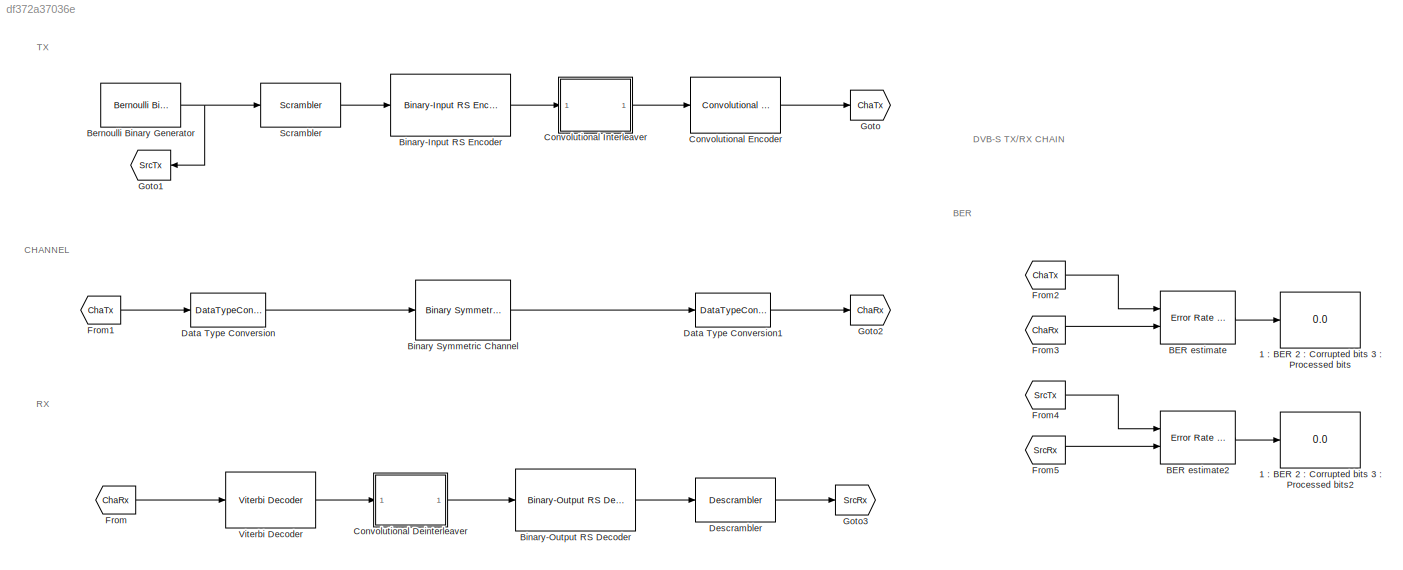
MODEL slx_df372a37036e
KIND model
CONFIG AbsTol = auto
CONFIG EnableMultiTasking = off
CONFIG FixedStep = auto
CONFIG MaxStep = auto
CONFIG MinStep = auto
CONFIG RelTol = 1e-3
CONFIG SampleTimeConstraint = Unconstrained
CONFIG SolverName = FixedStepAuto
CONFIG StartTime = 0
CONFIG StopTime = Tsim
BLOCK [Display] 1 : BER 2 : Corrupted bits 3 : Processed bits
  Decimation = 1
  Ports = [1]
BLOCK [Display] 1 : BER 2 : Corrupted bits 3 : Processed bits2
  Decimation = 1
  Ports = [1]
BLOCK [Reference] BER estimate  REF=commsink2/Error Rate
Calculation
  Ports = [2, 1]
  SourceBlock = commsink2/Error Rate\nCalculation
  SourceProductBaseCode = CM
  SourceType = Error Rate Calculation
BLOCK [Reference] BER estimate2  REF=commsink2/Error Rate
Calculation
  Ports = [2, 1]
  SourceBlock = commsink2/Error Rate\nCalculation
  SourceProductBaseCode = CM
  SourceType = Error Rate Calculation
BLOCK [Reference] Bernoulli Binary Generator  REF=commrandsrc3/Bernoulli Binary
Generator
  Ports = [0, 1]
  SourceBlock = commrandsrc3/Bernoulli Binary\nGenerator
  SourceProductBaseCode = CM
  SourceType = Bernoulli Binary Generator
BLOCK [Reference] Binary Symmetric Channel  REF=commchan3/Binary Symmetric
Channel
  Ports = [1, 1]
  SourceBlock = commchan3/Binary Symmetric\nChannel
  SourceProductBaseCode = CM
  SourceType = Binary Symmetric Channel
BLOCK [Reference] Binary-Input RS Encoder  REF=commblkcod2/Binary-Input
RS Encoder
  Ports = [1, 1]
  SourceBlock = commblkcod2/Binary-Input\nRS Encoder
  SourceProductBaseCode = CM
  SourceType = Binary-Input RS Encoder
BLOCK [Reference] Binary-Output RS Decoder  REF=commblkcod2/Binary-Output
RS Decoder
  Ports = [1, 1]
  SourceBlock = commblkcod2/Binary-Output\nRS Decoder
  SourceProductBaseCode = CM
  SourceType = Binary-Output RS Decoder
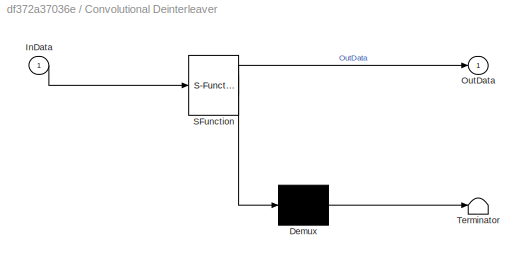
BLOCK [SubSystem] Convolutional Deinterleaver
  ErrorFcn = Stateflow.Translate.translate
  PermitHierarchicalResolution = ExplicitOnly
  Ports = [1, 1]
  RequestExecContextInheritance = off
  SFBlockType = MATLAB Function
  ShowPortLabels = none
  TreatAsAtomicUnit = on
BLOCK [Demux] Convolutional Deinterleaver/ Demux 
  Outputs = 1
  Ports = [1, 1]
BLOCK [S-Function] Convolutional Deinterleaver/ SFunction 
  EnableBusSupport = on
  FunctionName = sf_sfun
  Parameters = I,M
  PortCounts = [1 2]
  Ports = [1, 2]
  SFcnIsStateOwnerBlock = off
  SFunctionDeploymentMode = off
  Tag = Stateflow S-Function 1
BLOCK [Terminator] Convolutional Deinterleaver/ Terminator 
BLOCK [Inport] Convolutional Deinterleaver/InData
BLOCK [Outport] Convolutional Deinterleaver/OutData
BLOCK [Reference] Convolutional Encoder  REF=commcnvcod2/Convolutional
Encoder
  Ports = [1, 1]
  SourceBlock = commcnvcod2/Convolutional\nEncoder
  SourceProductBaseCode = CM
  SourceType = Convolutional Encoder
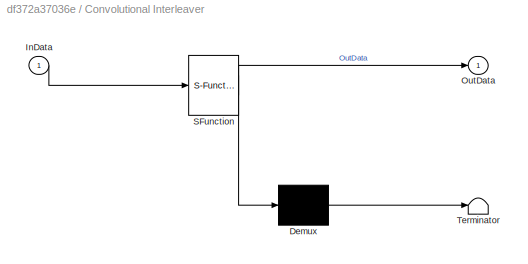
BLOCK [SubSystem] Convolutional Interleaver
  ErrorFcn = Stateflow.Translate.translate
  PermitHierarchicalResolution = ExplicitOnly
  Ports = [1, 1]
  RequestExecContextInheritance = off
  SFBlockType = MATLAB Function
  ShowPortLabels = none
  TreatAsAtomicUnit = on
BLOCK [Demux] Convolutional Interleaver/ Demux 
  Outputs = 1
  Ports = [1, 1]
BLOCK [S-Function] Convolutional Interleaver/ SFunction 
  EnableBusSupport = on
  FunctionName = sf_sfun
  Parameters = I,M
  PortCounts = [1 2]
  Ports = [1, 2]
  SFcnIsStateOwnerBlock = off
  SFunctionDeploymentMode = off
  Tag = Stateflow S-Function 3
BLOCK [Terminator] Convolutional Interleaver/ Terminator 
BLOCK [Inport] Convolutional Interleaver/InData
BLOCK [Outport] Convolutional Interleaver/OutData
BLOCK [DataTypeConversion] Data Type Conversion
  OutDataTypeStr = double
  RndMeth = Floor
  SaturateOnIntegerOverflow = off
BLOCK [DataTypeConversion] Data Type Conversion1
  OutDataTypeStr = uint8
  RndMeth = Floor
  SaturateOnIntegerOverflow = off
BLOCK [Reference] Descrambler  REF=commsequence2/Descrambler
  Ports = [1, 1]
  SourceBlock = commsequence2/Descrambler
  SourceProductBaseCode = CM
  SourceType = Descrambler
BLOCK [From] From
  GotoTag = ChaRx
BLOCK [From] From1
  GotoTag = ChaTx
BLOCK [From] From2
  GotoTag = ChaTx
BLOCK [From] From3
  GotoTag = ChaRx
BLOCK [From] From4
  GotoTag = SrcTx
BLOCK [From] From5
  GotoTag = SrcRx
BLOCK [Goto] Goto
  GotoTag = ChaTx
BLOCK [Goto] Goto1
  GotoTag = SrcTx
  NameLocation = top
BLOCK [Goto] Goto2
  GotoTag = ChaRx
BLOCK [Goto] Goto3
  GotoTag = SrcRx
BLOCK [Reference] Scrambler  REF=commsequence2/Scrambler
  Ports = [1, 1]
  SourceBlock = commsequence2/Scrambler
  SourceProductBaseCode = CM
  SourceType = Scrambler
BLOCK [Reference] Viterbi Decoder  REF=commcnvcod2/Viterbi Decoder
  Ports = [1, 1]
  SourceBlock = commcnvcod2/Viterbi Decoder
  SourceProductBaseCode = CM
  SourceType = Viterbi Decoder
ANNOTATION (root): DVB-S TX/RX CHAIN
ANNOTATION (root): BER
ANNOTATION (root): CHANNEL
ANNOTATION (root): RX
ANNOTATION (root): TX
LINE BER estimate2:1 -> 1 : BER 2 : Corrupted bits 3 : Processed bits2:1
LINE BER estimate:1 -> 1 : BER 2 : Corrupted bits 3 : Processed bits:1
NET Bernoulli Binary Generator:1 -> Goto1:1, Scrambler:1
LINE Binary Symmetric Channel:1 -> Data Type Conversion1:1
LINE Binary-Input RS Encoder:1 -> Convolutional Interleaver:1
LINE Binary-Output RS Decoder:1 -> Descrambler:1
LINE Convolutional Deinterleaver:1 -> Binary-Output RS Decoder:1
LINE Convolutional Encoder:1 -> Goto:1
LINE Convolutional Interleaver:1 -> Convolutional Encoder:1
LINE Data Type Conversion1:1 -> Goto2:1
LINE Data Type Conversion:1 -> Binary Symmetric Channel:1
LINE Descrambler:1 -> Goto3:1
LINE From1:1 -> Data Type Conversion:1
LINE From2:1 -> BER estimate:1
LINE From3:1 -> BER estimate:2
LINE From4:1 -> BER estimate2:1
LINE From5:1 -> BER estimate2:2
LINE From:1 -> Viterbi Decoder:1
LINE Scrambler:1 -> Binary-Input RS Encoder:1
LINE Viterbi Decoder:1 -> Convolutional Deinterleaver:1
note: NET lines group one-source signal fan-out (src -> all destinations, sorted); 1:1 wires keep LINE
CHART Convolutional
Deinterleaver states=1 transitions=1
  STATE_LABEL 'eML_blk_kernel()'
  STATE_LABEL 'SCRIPT:\n\n% >> Function for implementing a convolutional deinterleaver. It requires as input the data\n%    vector and the number of delay lines (I) and the number of delay cells per block (M). \nfunction OutData   = CnvDeintrlv( InData, I, M)\n    Len = length(InData);                                                           % overall I/O buffers length\n    OutData = uint8(zeros(Len,1));\n    ShReg =...<+2129ch>'
CHART Convolutional
Interleaver states=1 transitions=1
  STATE_LABEL 'eML_blk_kernel()'
  STATE_LABEL 'SCRIPT:\n\n% >> Function for implementing a convolutional interleaver. It requires as the data vector\n%    and the number of delay lines (I) and the number of delay cells per block (M). \nfunction OutData = CnvIntrlv( InData, M,  I)\n    Len = length(InData);                                                           % overall I/O buffers length\n    OutData = uint8(zeros(Len,1));\n    ShReg = NaN(I-1,M*...<+1963ch>'
CHART  states=0 transitions=0
CHART  states=0 transitions=0
